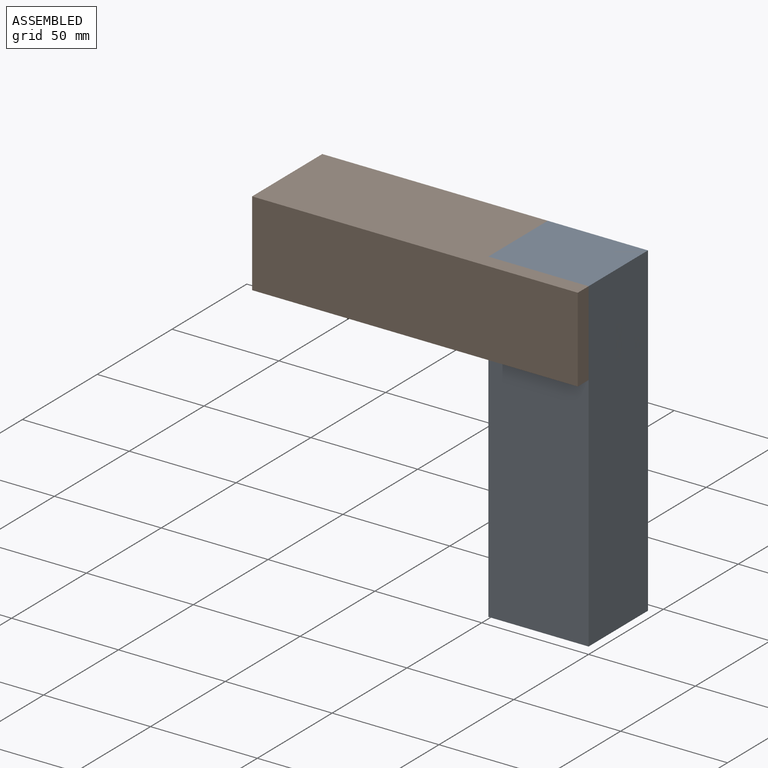
[diagram: assembled view]
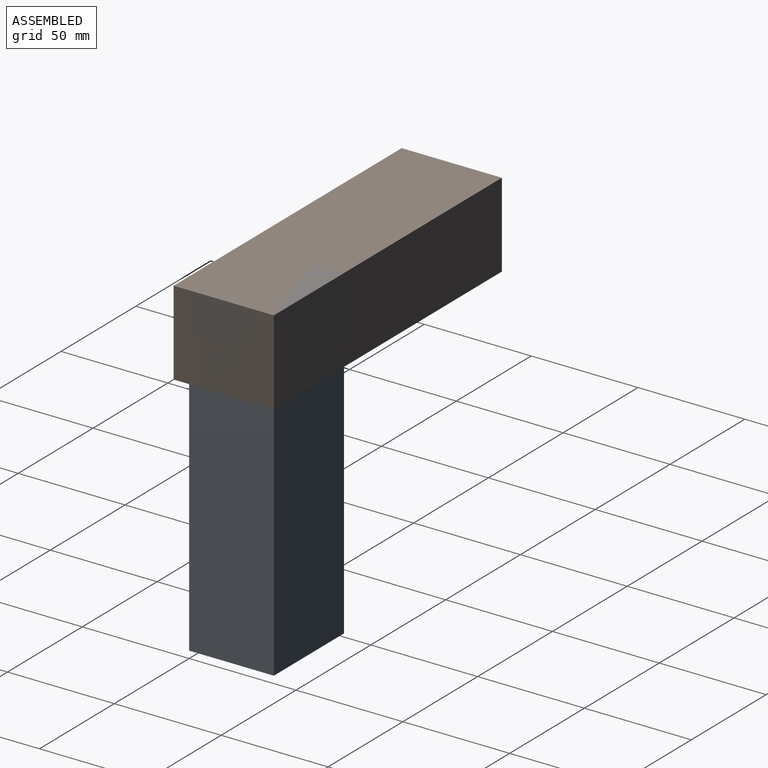
[diagram: assembled view, second angle]
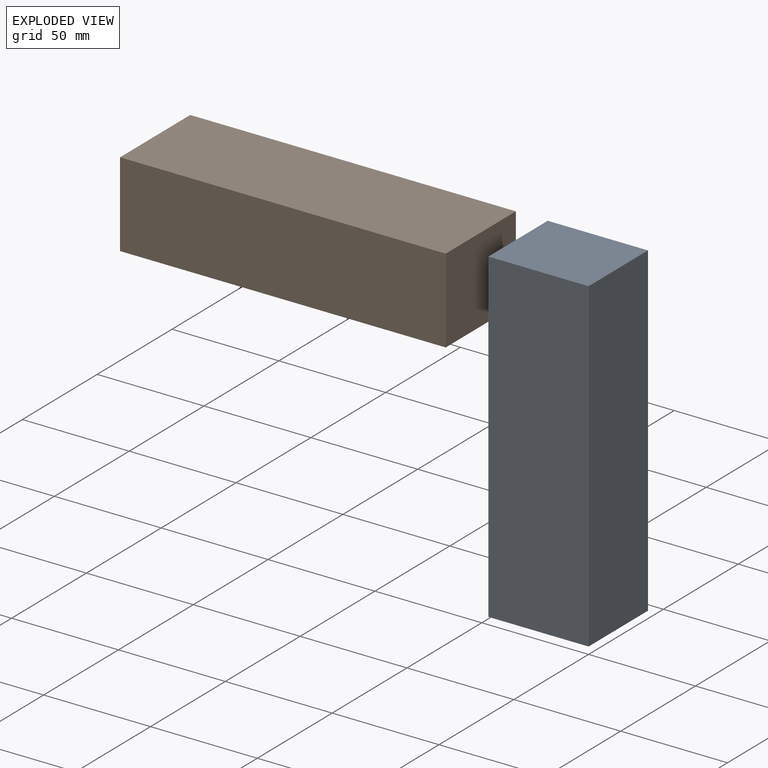
[diagram: exploded view]
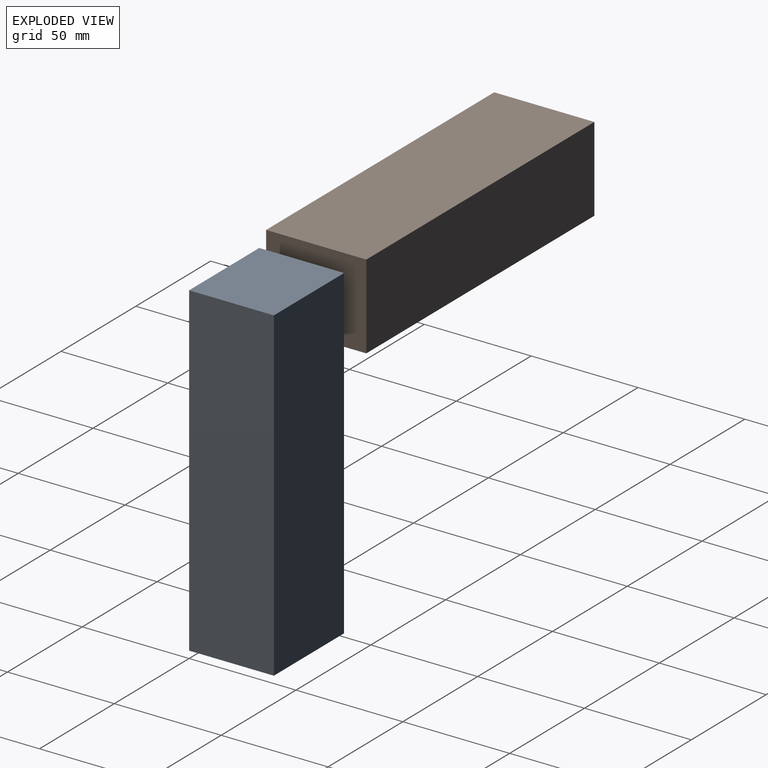
[diagram: exploded view, second angle]
ASSEMBLY  parts=2 mates=3
PART A: 6 faces, bbox 46.9x152.4x39.7 mm
  f0: plane 152.4x46.89mm, normal (0,0,1), area 7146.4mm2, adj f1,f3,f4,f5
  f1: plane 152.4x39.67mm, normal (-1,0,0), area 6045.8mm2, adj f0,f2,f4,f5
  f2: plane 152.4x46.89mm, normal (0,0,-1), area 7146.4mm2, adj f1,f3,f4,f5
  f3: plane 152.4x39.67mm, normal (1,0,0), area 6045.8mm2, adj f0,f2,f4,f5
  f4: plane 46.89x39.67mm, normal (0,-1,0), area 1860.2mm2, adj f0,f1,f2,f3
  f5: plane 46.89x39.67mm, normal (0,1,0), area 1860.2mm2, adj f0,f1,f2,f3
PART B: same geometry as A
PLACE A rot(axis=(-1,0,0),90deg) t=(138.79,-10.35,0)mm
PLACE B rot(axis=(0.71,0.71,0),180deg) t=(0,178.46,162.75)mm
MATE planar B.f5 <-> A.f3  axis (1,0,0) through (0,16.22,112.73)mm
MATE planar A.f0 <-> B.f3  axis (0,1,0) through (-23.45,39.67,76.2)mm
MATE planar A.f4 <-> B.f2  axis (0,0,1) through (-46.89,19.84,152.4)mm
